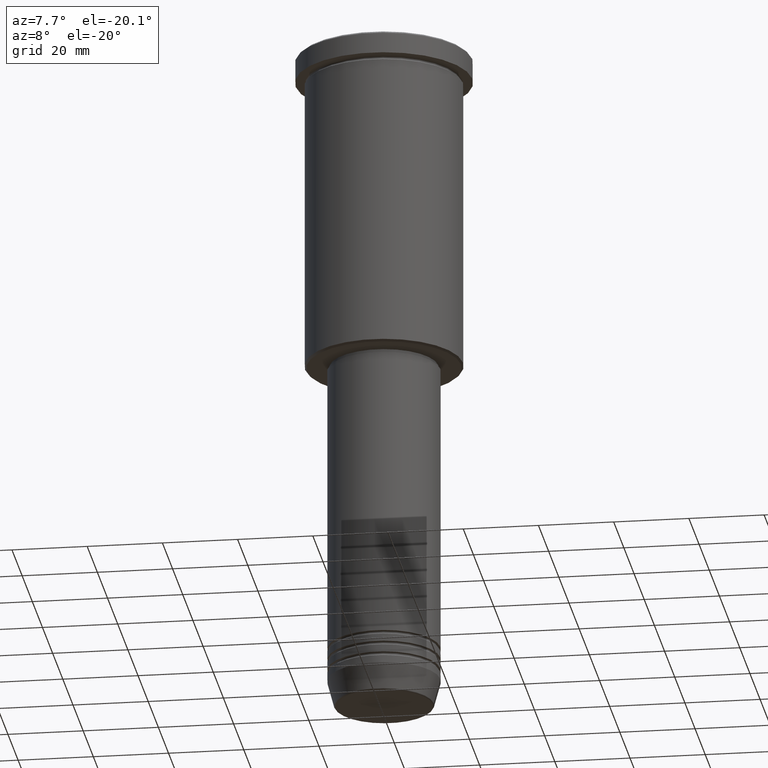
[diagram: clean part render]
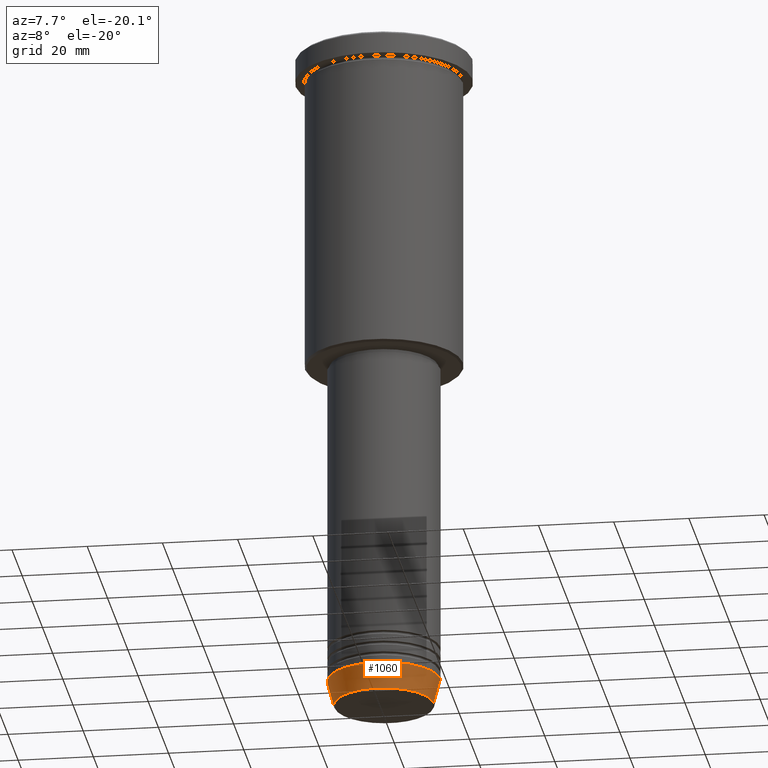
[diagram: same view with one face highlighted and labeled with its STEP entity id]
A machine part, auxiliary view. The second image highlights one B-rep face of the part: STEP entity #1060.
In plain terms, the highlighted conical surface has half-angle 15 deg.
Its self-contained STEP definition (entity closure, byte-faithful):
#1 = CIRCLE ( 'NONE', #674, 13.22365507213720370 ) ;
#60 = LINE ( 'NONE', #702, #738 ) ;
#86 = DIRECTION ( 'NONE',  ( 1.000000000000000000, 0.000000000000000000, 0.000000000000000000 ) ) ;
#91 = VECTOR ( 'NONE', #801, 1000.000000000000000 ) ;
#150 = VERTEX_POINT ( 'NONE', #839 ) ;
#180 = VERTEX_POINT ( 'NONE', #323 ) ;
#204 = CARTESIAN_POINT ( 'NONE',  ( 0.000000000000000000, 0.000000000000000000, -174.0000000000000284 ) ) ;
#252 = LINE ( 'NONE', #891, #91 ) ;
#262 = ORIENTED_EDGE ( 'NONE', *, *, #734, .T. ) ;
#272 = EDGE_LOOP ( 'NONE', ( #1055, #262, #633, #592 ) ) ;
#289 = AXIS2_PLACEMENT_3D ( 'NONE', #204, #291, #86 ) ;
#291 = DIRECTION ( 'NONE',  ( -0.000000000000000000, -0.000000000000000000, 1.000000000000000000 ) ) ;
#310 = CONICAL_SURFACE ( 'NONE', #289, 15.00000000000000000, 0.2617993877991496299 ) ;
#320 = CIRCLE ( 'NONE', #1054, 15.00000000000000000 ) ;
#323 = CARTESIAN_POINT ( 'NONE',  ( -15.00000000000000000, 1.836970198721029589E-15, -174.0000000000000284 ) ) ;
#360 = CARTESIAN_POINT ( 'NONE',  ( 13.22365507213720370, 0.000000000000000000, -180.6294095225512422 ) ) ;
#434 = DIRECTION ( 'NONE',  ( 1.000000000000000000, 0.000000000000000000, 0.000000000000000000 ) ) ;
#592 = ORIENTED_EDGE ( 'NONE', *, *, #666, .F. ) ;
#633 = ORIENTED_EDGE ( 'NONE', *, *, #995, .T. ) ;
#666 = EDGE_CURVE ( 'NONE', #180, #150, #320, .T. ) ;
#674 = AXIS2_PLACEMENT_3D ( 'NONE', #885, #880, #434 ) ;
#702 = CARTESIAN_POINT ( 'NONE',  ( 15.00000000000000000, 0.000000000000000000, -174.0000000000000284 ) ) ;
#734 = EDGE_CURVE ( 'NONE', #1110, #1033, #1, .T. ) ;
#738 = VECTOR ( 'NONE', #1069, 1000.000000000000000 ) ;
#746 = FACE_OUTER_BOUND ( 'NONE', #272, .T. ) ;
#801 = DIRECTION ( 'NONE',  ( -0.2588190451025209615, 3.169619151431767406E-17, 0.9659258262890682012 ) ) ;
#839 = CARTESIAN_POINT ( 'NONE',  ( 15.00000000000000000, 0.000000000000000000, -174.0000000000000284 ) ) ;
#880 = DIRECTION ( 'NONE',  ( -0.000000000000000000, -0.000000000000000000, 1.000000000000000000 ) ) ;
#885 = CARTESIAN_POINT ( 'NONE',  ( 0.000000000000000000, 0.000000000000000000, -180.6294095225512422 ) ) ;
#891 = CARTESIAN_POINT ( 'NONE',  ( -15.00000000000000000, 1.836970198721029589E-15, -174.0000000000000284 ) ) ;
#918 = CARTESIAN_POINT ( 'NONE',  ( -13.22365507213720370, 1.728200442216589175E-15, -180.6294095225512422 ) ) ;
#980 = DIRECTION ( 'NONE',  ( -0.000000000000000000, -0.000000000000000000, 1.000000000000000000 ) ) ;
#995 = EDGE_CURVE ( 'NONE', #1033, #150, #60, .T. ) ;
#1026 = EDGE_CURVE ( 'NONE', #1110, #180, #252, .T. ) ;
#1033 = VERTEX_POINT ( 'NONE', #360 ) ;
#1054 = AXIS2_PLACEMENT_3D ( 'NONE', #1086, #980, #1151 ) ;
#1055 = ORIENTED_EDGE ( 'NONE', *, *, #1026, .F. ) ;
#1060 = ADVANCED_FACE ( 'NONE', ( #746 ), #310, .T. ) ;
#1069 = DIRECTION ( 'NONE',  ( 0.2588190451025209615, 0.000000000000000000, 0.9659258262890682012 ) ) ;
#1086 = CARTESIAN_POINT ( 'NONE',  ( 0.000000000000000000, 0.000000000000000000, -174.0000000000000284 ) ) ;
#1110 = VERTEX_POINT ( 'NONE', #918 ) ;
#1151 = DIRECTION ( 'NONE',  ( 1.000000000000000000, 0.000000000000000000, 0.000000000000000000 ) ) ;